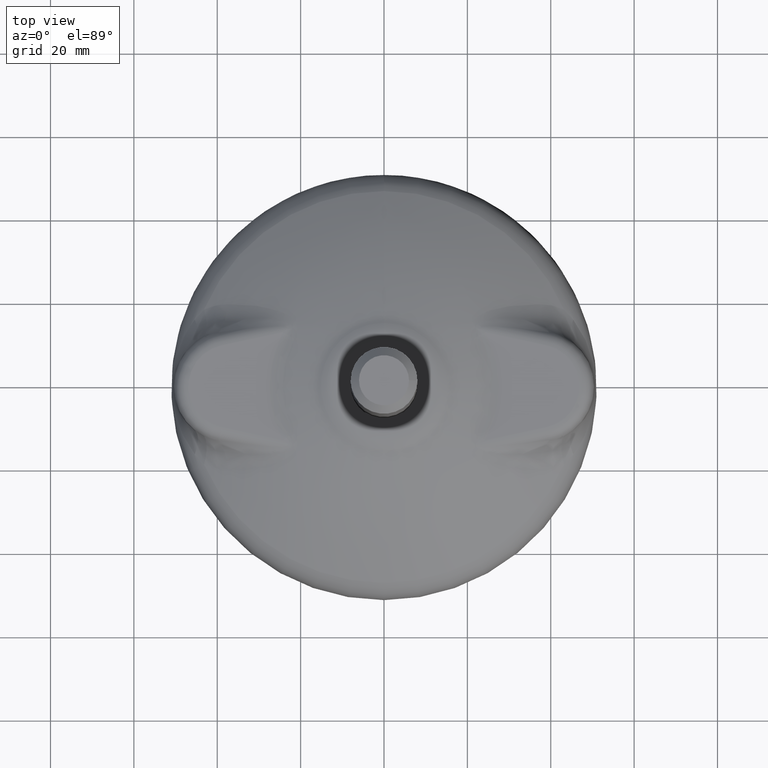
[diagram: clean part render]
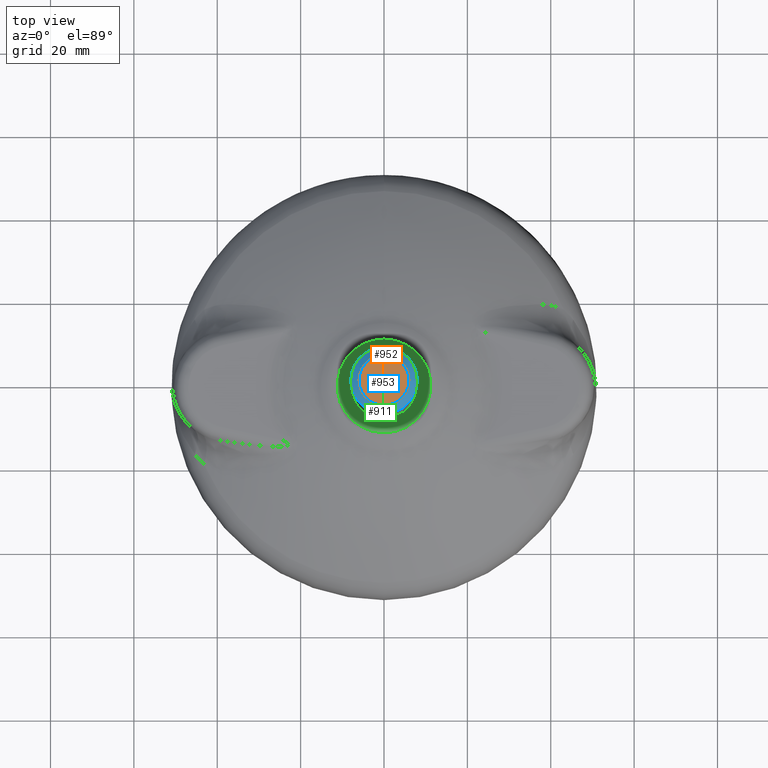
[diagram: same view with three faces highlighted in distinct colors, each labeled with its STEP entity id]
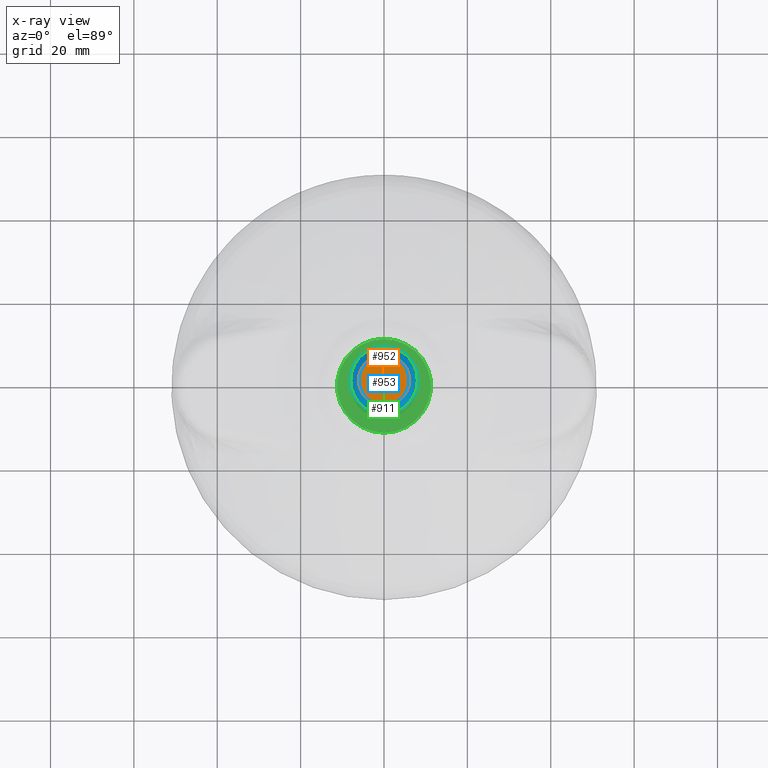
[diagram: x-ray of the same camera — body ghosted, the three highlighted faces saturated]
A machine part, top view with three faces highlighted in distinct colors.
The next image is the same camera in x-ray (body ghosted, the three faces saturated) — at least one of them is partly hidden behind the body in this view.
Their STEP definitions:

[orange] entity #952 — the highlighted planar face has unit normal (0, 0, 1).
#203=FACE_OUTER_BOUND('',#270,.T.);
#270=EDGE_LOOP('',(#811));
#345=CIRCLE('',#1093,5.99999982435504);
#426=VERTEX_POINT('',#5437);
#555=EDGE_CURVE('',#426,#426,#345,.T.);
#811=ORIENTED_EDGE('',*,*,#555,.T.);
#831=PLANE('',#1092);
#952=ADVANCED_FACE('',(#203),#831,.T.);
#1092=AXIS2_PLACEMENT_3D('',#5436,#1346,#1347);
#1093=AXIS2_PLACEMENT_3D('',#5438,#1348,#1349);
#1346=DIRECTION('center_axis',(0.,0.,1.));
#1347=DIRECTION('ref_axis',(1.,0.,0.));
#1348=DIRECTION('center_axis',(0.,0.,1.));
#1349=DIRECTION('ref_axis',(1.,0.,0.));
#5436=CARTESIAN_POINT('Origin',(9.04595540200034E-9,0.,100.000211825098));
#5437=CARTESIAN_POINT('',(5.99999762951925,4.919660057E-6,100.000211825098));
#5438=CARTESIAN_POINT('Origin',(-2.194835783598E-6,4.919660057E-6,100.000211825098));

[blue] entity #953 — the highlighted conical surface has half-angle 45 deg.
#50=CONICAL_SURFACE('',#1094,7.99999979647845,0.785398163397448);
#115=LINE('',#5440,#137);
#137=VECTOR('',#1352,7.99999979647845);
#204=FACE_OUTER_BOUND('',#271,.T.);
#271=EDGE_LOOP('',(#812,#813,#814,#815,#816));
#334=CIRCLE('',#1074,7.99999979647845);
#340=CIRCLE('',#1080,7.99999979647845);
#345=CIRCLE('',#1093,5.99999982435504);
#411=VERTEX_POINT('',#5388);
#412=VERTEX_POINT('',#5389);
#426=VERTEX_POINT('',#5437);
#533=EDGE_CURVE('',#411,#412,#334,.F.);
#544=EDGE_CURVE('',#412,#411,#340,.F.);
#555=EDGE_CURVE('',#426,#426,#345,.T.);
#556=EDGE_CURVE('',#411,#426,#115,.T.);
#812=ORIENTED_EDGE('',*,*,#533,.F.);
#813=ORIENTED_EDGE('',*,*,#556,.T.);
#814=ORIENTED_EDGE('',*,*,#555,.F.);
#815=ORIENTED_EDGE('',*,*,#556,.F.);
#816=ORIENTED_EDGE('',*,*,#544,.F.);
#953=ADVANCED_FACE('',(#204),#50,.T.);
#1074=AXIS2_PLACEMENT_3D('',#5390,#1301,#1302);
#1080=AXIS2_PLACEMENT_3D('',#5410,#1318,#1319);
#1093=AXIS2_PLACEMENT_3D('',#5438,#1348,#1349);
#1094=AXIS2_PLACEMENT_3D('',#5439,#1350,#1351);
#1301=DIRECTION('center_axis',(0.,0.,1.));
#1302=DIRECTION('ref_axis',(1.,0.,0.));
#1318=DIRECTION('center_axis',(0.,0.,1.));
#1319=DIRECTION('ref_axis',(1.,0.,0.));
#1348=DIRECTION('center_axis',(0.,0.,1.));
#1349=DIRECTION('ref_axis',(1.,0.,0.));
#1350=DIRECTION('center_axis',(1.3938298E-8,0.,-1.));
#1351=DIRECTION('ref_axis',(-1.,0.,-1.3938298E-8));
#1352=DIRECTION('',(-0.707106791042412,8.65956056235493E-17,0.707106771330683));
#5388=CARTESIAN_POINT('',(7.99999762951926,4.919660057E-6,98.0002117693444));
#5389=CARTESIAN_POINT('',(-8.00000196343764,4.91966005602028E-6,98.0002117693444));
#5390=CARTESIAN_POINT('Origin',(-2.166959184598E-6,4.919660057E-6,98.0002117693444));
#5410=CARTESIAN_POINT('Origin',(-2.166959184598E-6,4.919660057E-6,98.0002117693444));
#5437=CARTESIAN_POINT('',(5.99999762951925,4.919660057E-6,100.000211825098));
#5438=CARTESIAN_POINT('Origin',(-2.194835783598E-6,4.919660057E-6,100.000211825098));
#5439=CARTESIAN_POINT('Origin',(-2.166959184598E-6,4.919660057E-6,98.0002117693444));
#5440=CARTESIAN_POINT('',(7.99999762951926,4.91966005602028E-6,98.0002118808508));

[green] entity #911 — the highlighted planar face has unit normal (0, -0, -1).
#144=FACE_BOUND('',#229,.T.);
#162=FACE_OUTER_BOUND('',#228,.T.);
#228=EDGE_LOOP('',(#651));
#229=EDGE_LOOP('',(#652));
#302=CIRCLE('',#1024,11.2500000000003);
#304=CIRCLE('',#1027,7.20000000000002);
#399=VERTEX_POINT('',#4179);
#400=VERTEX_POINT('',#4183);
#494=EDGE_CURVE('',#399,#399,#302,.T.);
#496=EDGE_CURVE('',#400,#400,#304,.T.);
#651=ORIENTED_EDGE('',*,*,#494,.T.);
#652=ORIENTED_EDGE('',*,*,#496,.T.);
#821=PLANE('',#1026);
#911=ADVANCED_FACE('',(#162,#144),#821,.F.);
#1024=AXIS2_PLACEMENT_3D('',#4180,#1194,#1195);
#1026=AXIS2_PLACEMENT_3D('',#4182,#1198,#1199);
#1027=AXIS2_PLACEMENT_3D('',#4184,#1200,#1201);
#1194=DIRECTION('center_axis',(0.,1.171453E-15,1.));
#1195=DIRECTION('ref_axis',(0.,-1.,1.171453E-15));
#1198=DIRECTION('center_axis',(0.,-1.171453E-15,-1.));
#1199=DIRECTION('ref_axis',(0.,1.,-1.171453E-15));
#1200=DIRECTION('center_axis',(0.,-1.171453E-15,-1.));
#1201=DIRECTION('ref_axis',(0.,1.,-1.171453E-15));
#4179=CARTESIAN_POINT('',(-1.37772764904081E-15,11.2500000000004,22.5000074721176));
#4180=CARTESIAN_POINT('Origin',(0.,5.271542E-14,22.5000074721176));
#4182=CARTESIAN_POINT('Origin',(-11.2500000000003,1.698608E-14,22.5000074721177));
#4183=CARTESIAN_POINT('',(-8.81745695386094E-16,-7.2,22.5000074721177));
#4184=CARTESIAN_POINT('Origin',(0.,2.665057E-14,22.5000074721177));